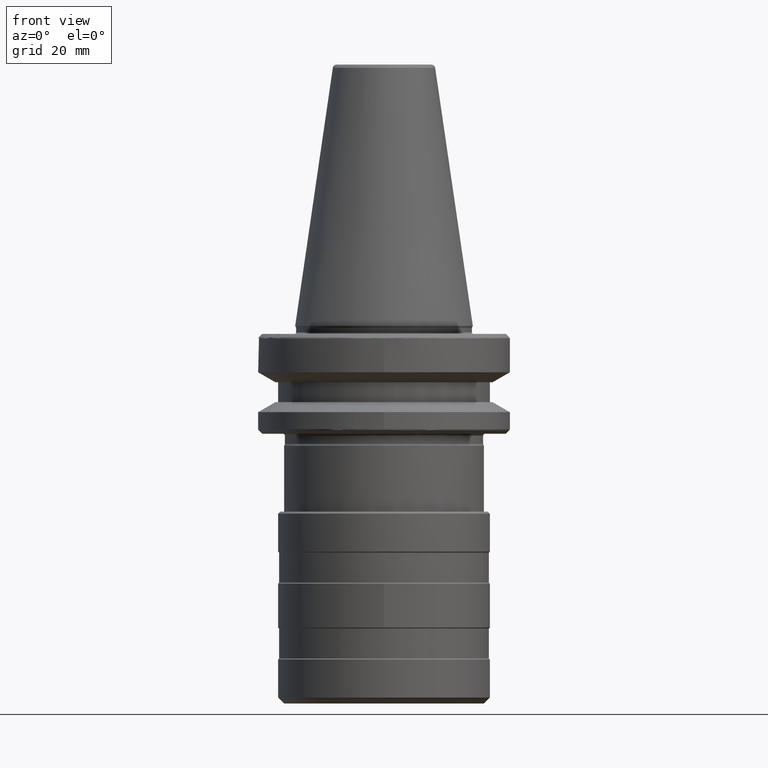
[diagram: clean part render]
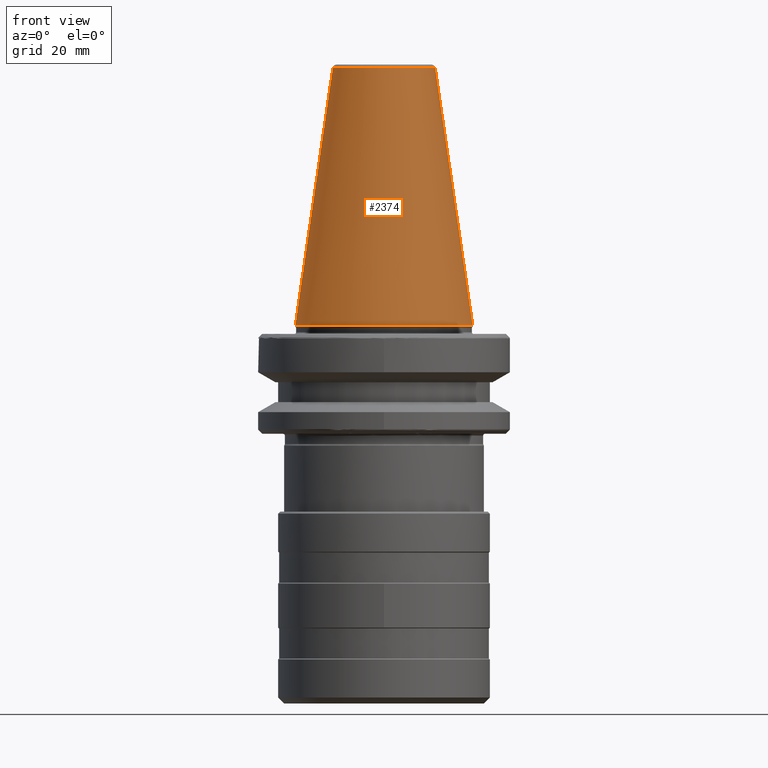
[diagram: same view with one face highlighted and labeled with its STEP entity id]
A machine part, front view. The second image highlights one B-rep face of the part: STEP entity #2374.
In plain terms, the highlighted conical surface has half-angle 8.297 deg.
Its self-contained STEP definition (entity closure, byte-faithful):
#131 = DIRECTION ( 'NONE',  ( -1.000000000000000000, 0.0000000000000000000, 0.0000000000000000000 ) ) ;
#147 = AXIS2_PLACEMENT_3D ( 'NONE', #2454, #2765, #895 ) ;
#244 = CIRCLE ( 'NONE', #633, 22.22499999999999400 ) ;
#250 = VECTOR ( 'NONE', #1441, 1000.000000000000000 ) ;
#293 = AXIS2_PLACEMENT_3D ( 'NONE', #2712, #2711, #2700 ) ;
#381 = EDGE_CURVE ( 'NONE', #2570, #554, #600, .T. ) ;
#554 = VERTEX_POINT ( 'NONE', #1368 ) ;
#600 = LINE ( 'NONE', #1564, #250 ) ;
#633 = AXIS2_PLACEMENT_3D ( 'NONE', #3025, #1587, #131 ) ;
#841 = ORIENTED_EDGE ( 'NONE', *, *, #3090, .T. ) ;
#895 = DIRECTION ( 'NONE',  ( -1.000000000000000000, 0.0000000000000000000, 0.0000000000000000000 ) ) ;
#912 = VERTEX_POINT ( 'NONE', #974 ) ;
#974 = CARTESIAN_POINT ( 'NONE',  ( -22.22499999999999800, 0.0000000000000000000, -3.081487911019577400E-030 ) ) ;
#1108 = LINE ( 'NONE', #2336, #2449 ) ;
#1139 = CONICAL_SURFACE ( 'NONE', #147, 22.22500000000000100, 0.1448138465489547400 ) ;
#1368 = CARTESIAN_POINT ( 'NONE',  ( 22.22499999999999800, 2.721777511104992500E-015, -3.081487911019577400E-030 ) ) ;
#1441 = DIRECTION ( 'NONE',  ( 0.1443082272688266100, 1.767266086153973100E-017, -0.9895327864919528600 ) ) ;
#1500 = EDGE_CURVE ( 'NONE', #1959, #912, #1108, .T. ) ;
#1511 = ORIENTED_EDGE ( 'NONE', *, *, #2338, .T. ) ;
#1564 = CARTESIAN_POINT ( 'NONE',  ( 22.22500000000000100, 2.721777511104992800E-015, -2.775557561562891400E-014 ) ) ;
#1587 = DIRECTION ( 'NONE',  ( -0.0000000000000000000, -0.0000000000000000000, 1.000000000000000000 ) ) ;
#1596 = FACE_OUTER_BOUND ( 'NONE', #2114, .T. ) ;
#1682 = CARTESIAN_POINT ( 'NONE',  ( 12.81219950690451800, -2.956304792042748400E-009, 64.54430822699950500 ) ) ;
#1840 = CARTESIAN_POINT ( 'NONE',  ( -12.81219950690595500, -5.752269409389760400E-010, 64.54430822698967100 ) ) ;
#1959 = VERTEX_POINT ( 'NONE', #1840 ) ;
#2114 = EDGE_LOOP ( 'NONE', ( #2508, #841, #2834, #1511 ) ) ;
#2283 = DIRECTION ( 'NONE',  ( -0.1443082272688266100, 0.0000000000000000000, -0.9895327864919528600 ) ) ;
#2336 = CARTESIAN_POINT ( 'NONE',  ( -22.22500000000000100, 0.0000000000000000000, -2.775557561562891400E-014 ) ) ;
#2338 = EDGE_CURVE ( 'NONE', #912, #554, #244, .T. ) ;
#2374 = ADVANCED_FACE ( 'NONE', ( #1596 ), #1139, .T. ) ;
#2449 = VECTOR ( 'NONE', #2283, 1000.000000000000000 ) ;
#2454 = CARTESIAN_POINT ( 'NONE',  ( 0.0000000000000000000, 0.0000000000000000000, -2.775557561562891400E-014 ) ) ;
#2508 = ORIENTED_EDGE ( 'NONE', *, *, #381, .F. ) ;
#2570 = VERTEX_POINT ( 'NONE', #1682 ) ;
#2700 = DIRECTION ( 'NONE',  ( -1.000000000000000000, 0.0000000000000000000, 0.0000000000000000000 ) ) ;
#2711 = DIRECTION ( 'NONE',  ( 0.0000000000000000000, 0.0000000000000000000, -1.000000000000000000 ) ) ;
#2712 = CARTESIAN_POINT ( 'NONE',  ( 0.0000000000000000000, 0.0000000000000000000, 64.54430822701310400 ) ) ;
#2722 = CIRCLE ( 'NONE', #293, 12.81219950699809300 ) ;
#2765 = DIRECTION ( 'NONE',  ( 0.0000000000000000000, 0.0000000000000000000, -1.000000000000000000 ) ) ;
#2834 = ORIENTED_EDGE ( 'NONE', *, *, #1500, .T. ) ;
#3025 = CARTESIAN_POINT ( 'NONE',  ( 0.0000000000000000000, 0.0000000000000000000, 0.0000000000000000000 ) ) ;
#3090 = EDGE_CURVE ( 'NONE', #2570, #1959, #2722, .T. ) ;